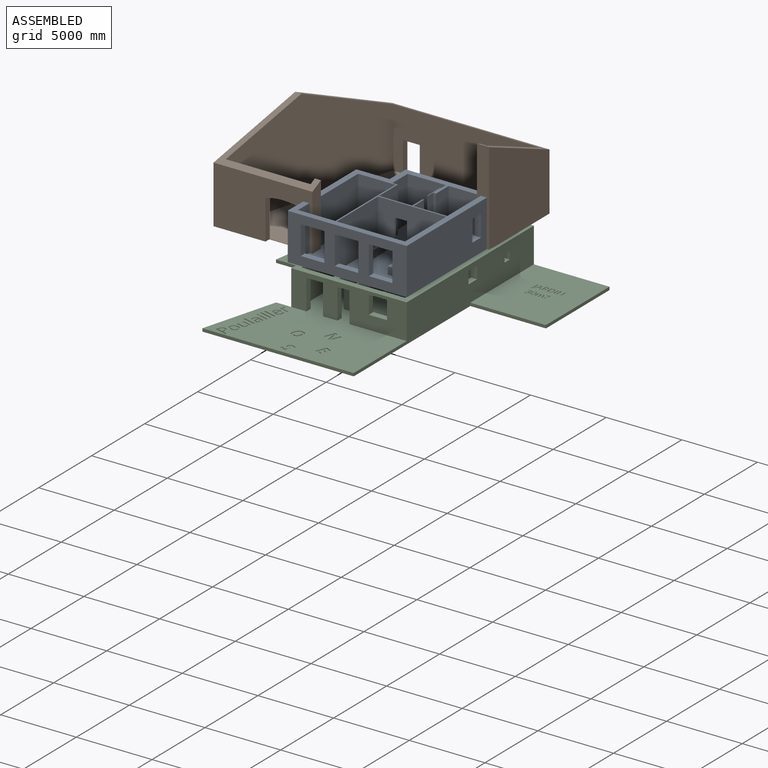
[diagram: assembled view]
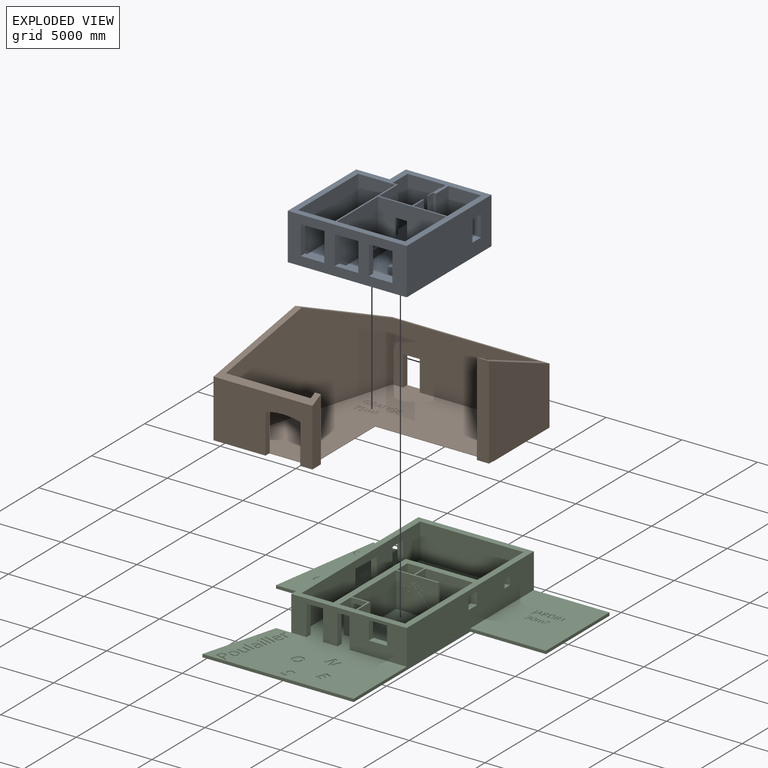
[diagram: exploded view]
GUIDED TOUR — MATED ASSEMBLY (Onshape document 5b07164b335bba8ee51f4380, AutoMate assembly 5b07164b335bba8ee51f4380_55357e48fb8a0a89cb734619_276b6a26d97ef7c32d27a7d5_default)

This assembly has 3 components, labeled P0..P2 below (a component is one placed occurrence of a part; the same part can appear more than once), held together by 2 mates. A mate is a constraint between two components; its type names the relative motion it leaves free:
  FASTENED — locks the two components together rigidly (no relative motion).
Axis/direction vectors are unit vectors and 'through' points are millimeter coordinates, both in the assembly's world frame.

MATES
  1. FASTENED "Fastened 3": P0 <-> P1, direction (0.000, 0.000, -1.000) through (-421.94, 3028.25, 818.60) mm
  2. FASTENED "Fastened 2": P2 <-> P0, direction (0.000, 0.000, 1.000) through (5238.06, -3441.75, 518.60) mm

ASSEMBLY ORDER
  1. P0 — the base component [order verified]
  2. P1 [order verified]
  3. P2 [order verified]
Order-tag legend:
  [order verified] — this step's position reverses a verified removal order: the component was checked to insert without passing through the ones already placed.

Of the 3 components, 1 carries the full construction recipe — the FeatureScript program that regenerates the part's solid from scratch; the rest are supplied as boundary geometry only.
Each toured component is shown spotlighted twice — in the assembled view, then in the exploded view, where a leader line traces a displaced component back to its assembled socket (saturated green if recipe-attached, orange if geometry-only; every other component desaturated gray) — followed by its recipe or geometry summary and the mates that hold it.
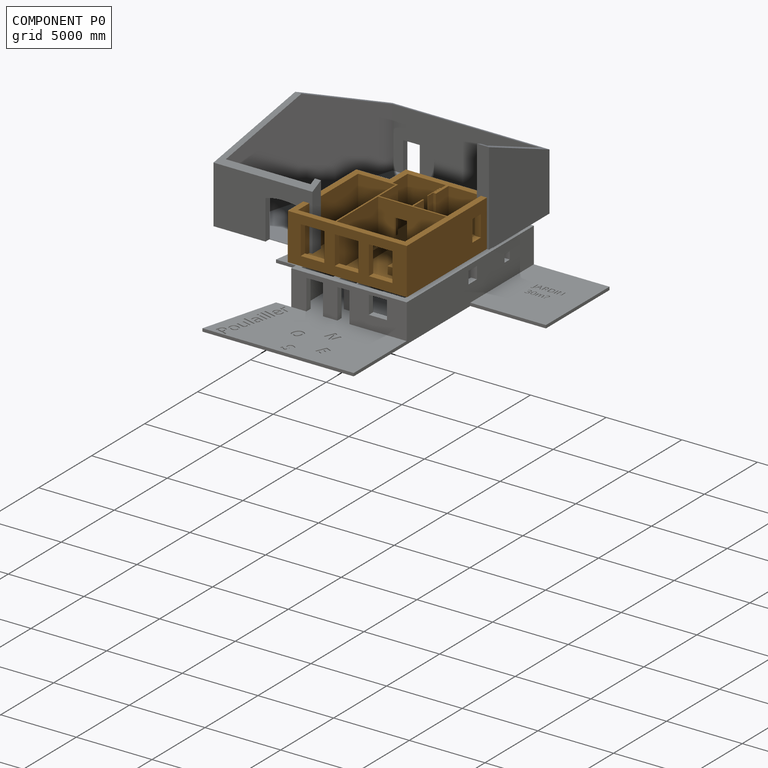
[diagram: component P0 — assembled]
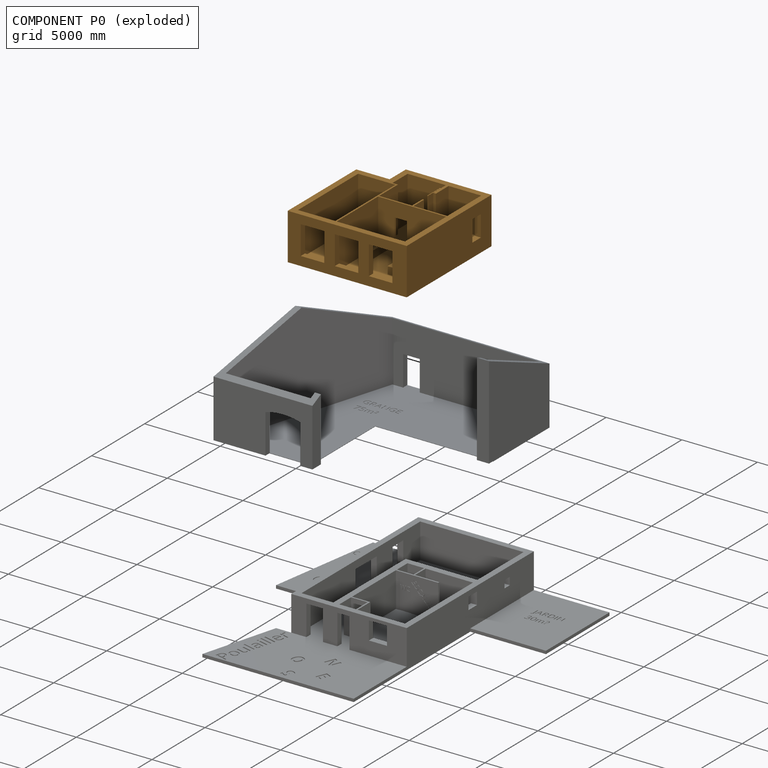
[diagram: component P0 — exploded]
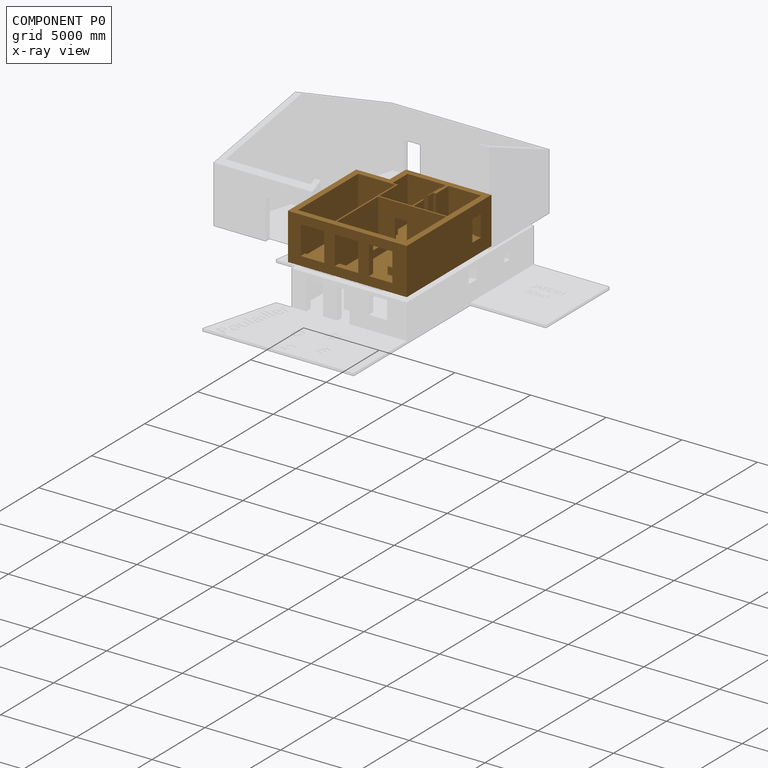
[diagram: component P0 — x-ray view]
COMPONENT P0 — geometry summary (no construction recipe available for this part):
  bounding box: 8000.0 x 7860.0 x 3070.0 mm
  B-rep topology: 1 solid, 104 faces, 558 edges
  volume: 44817512865 mm^3 (23% of its bounding box)
Held by: FASTENED mate "Fastened 3" to P1; FASTENED mate "Fastened 2" to P2.
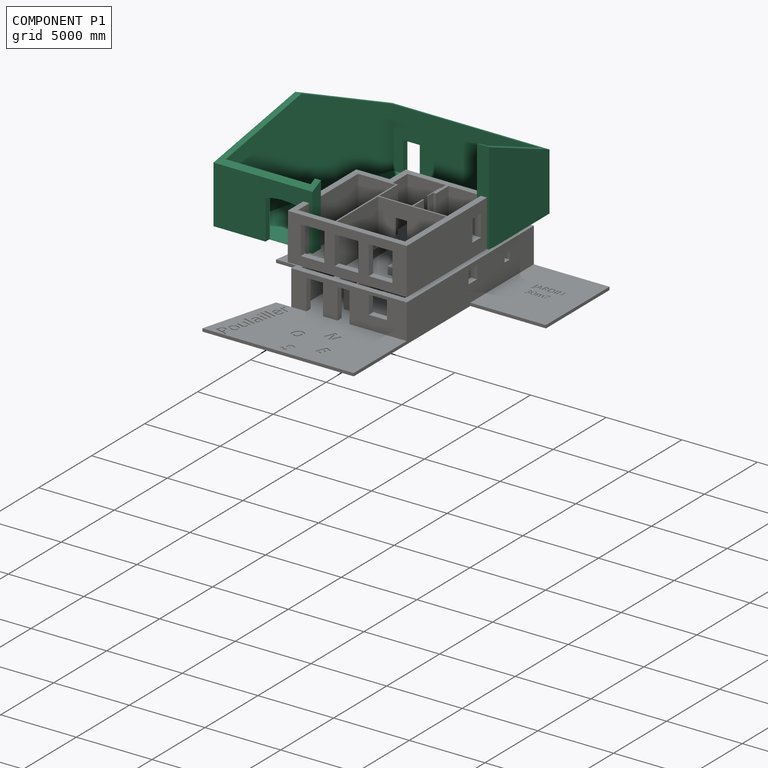
[diagram: component P1 — assembled]
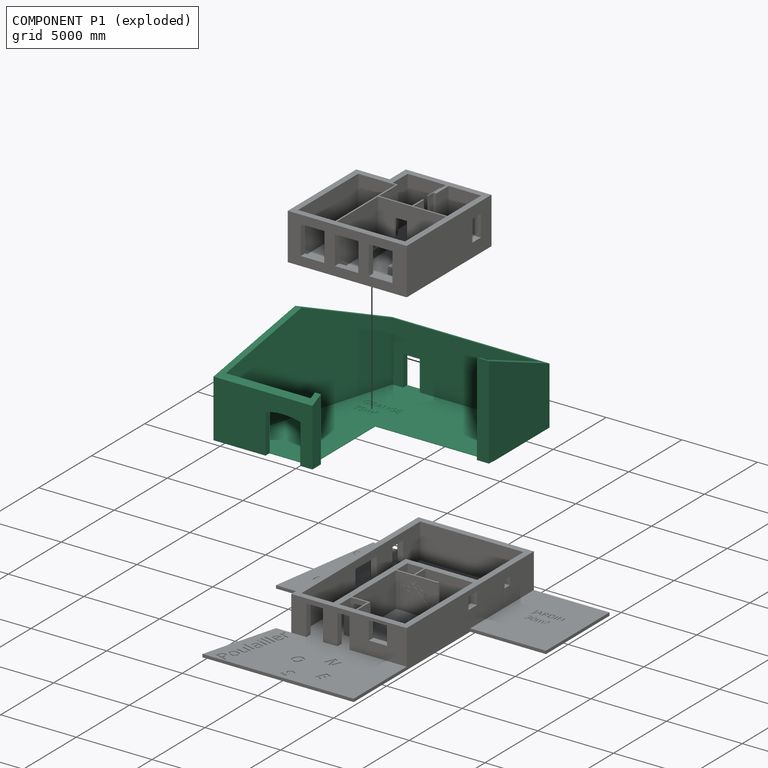
[diagram: component P1 — exploded]
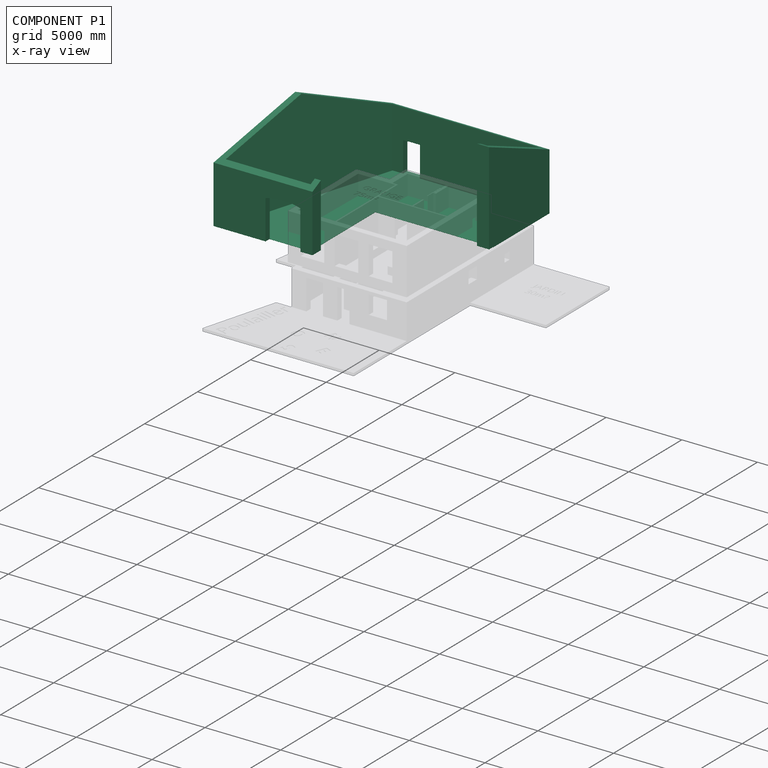
[diagram: component P1 — x-ray view]
COMPONENT P1 — recipe-attached (CADFS 00465519, mesh-verified: the recipe's output STEP matches this component's geometry to below the mesh-comparison resolution (tessellation chordal tolerance ~29 mm)).
Held by: FASTENED mate "Fastened 3" to P0.
Construction recipe (FeatureScript — the CAD program that rebuilds this solid; sketch coordinates are in the units given by the * unit suffixes, e.g. mm):

FeatureScript 1540;
import(path : "onshape/std/geometry.fs", version : "1540.0");
import(path : "onshape/std/common.fs", version : "1540.0");
const mm = millimeter;
const VERTEX = EntityType.VERTEX;
const EDGE = EntityType.EDGE;
const FACE = EntityType.FACE;
const BODY = EntityType.BODY;
function v(x, y){return vector(x, y);}
function OD(order){return orderDisambiguation(order);}
function OSD(set){return originalSetDisambiguation(set);}
function TD(topology){return topologyDisambiguation(topology);}
function TDD(query){return trueDependencyDisambiguation(query);}
function sQuery(a, b, c) {return sketchEntityQuery(a, b, c);}

annotation { "Feature Type Name" : "Feature", "Feature Type Description" : "" }
export const myFeature = defineFeature(function(context is Context, id is Id, definition is map)
    precondition{}
    {
        {
            var Q0;
            Q0=qCreatedBy(makeId("Top.planeOp"),FACE);
            var sketch = newSketch(context, id + "F0", { "sketchPlane" : qUnion([Q0])});
            skLineSegment(sketch, "E0", {"start": v(-9700, 4910) * mm, "end": v(0, 4910) * mm});
            skLineSegment(sketch, "E1", {"start": v(-9700, 4910) * mm, "end": v(-13000, -6100) * mm});
            skLineSegment(sketch, "E2", {"start": v(0, 4910) * mm, "end": v(0, 0) * mm});
            skLineSegment(sketch, "E3", {"start": v(-7400, -6100) * mm, "end": v(-13000, -6100) * mm});
            skLineSegment(sketch, "E4.0", {"start": v(-9997.69, 5310) * mm, "end": v(400, 5310) * mm});
            skLineSegment(sketch, "E4.1", {"start": v(-7000, -6500) * mm, "end": v(-13537.47, -6500) * mm});
            skLineSegment(sketch, "E4.3", {"start": v(-9997.69, 5310) * mm, "end": v(-13537.47, -6500) * mm});
            skLineSegment(sketch, "E4.5", {"start": v(400, 5310) * mm, "end": v(400, -400) * mm});
            skLineSegment(sketch, "E5", {"start": v(-7400, -6100) * mm, "end": v(-7400, -5700) * mm});
            skLineSegment(sketch, "E6", {"start": v(-7400, -5700) * mm, "end": v(-7000, -5700) * mm});
            skLineSegment(sketch, "E7", {"start": v(-7000, -5700) * mm, "end": v(-7000, -6500) * mm});
            skLineSegment(sketch, "E8", {"start": v(0, 0) * mm, "end": v(-400, 0) * mm});
            skLineSegment(sketch, "E9", {"start": v(-400, 0) * mm, "end": v(-400, -400) * mm});
            skLineSegment(sketch, "E10", {"start": v(-400, -400) * mm, "end": v(400, -400) * mm});
            skSolve(sketch);
        }
        {
            var Q0;
            Q0 = qSketchRegion(id + "F0", true);
            extrude(context, id + "F1", {"entities" : qUnion([Q0]), "depth" : 6400 * mm});
        }
        {
            var Q0;
            Q0=qCreatedBy(makeId("Right.planeOp"),FACE);
            var sketch = newSketch(context, id + "F2", { "sketchPlane" : qUnion([Q0])});
            skLineSegment(sketch, "E11", {"start": v(-6500, 3800) * mm, "end": v(-1100, 6400) * mm});
            skLineSegment(sketch, "E12", {"start": v(-1100, 6400) * mm, "end": v(5310, 3800) * mm});
            skLineSegment(sketch, "E13", {"start": v(5310, 3800) * mm, "end": v(5310, 0) * mm});
            skLineSegment(sketch, "E14", {"start": v(5310, 3800) * mm, "end": v(5310, 6400) * mm});
            skLineSegment(sketch, "E15", {"start": v(-6500, 6400) * mm, "end": v(5310, 6400) * mm});
            skLineSegment(sketch, "E16", {"start": v(-6500, 6400) * mm, "end": v(-6500, 3800) * mm});
            skSolve(sketch);
        }
        {
            var Q0;
            Q0 = qSketchRegion(id + "F2", true);
            extrude(context, id + "F3", {"entities" : qUnion([Q0]), "operationType" : NewBodyOperationType.REMOVE, "endBound" : BoundingType.THROUGH_ALL, "depth" : 25.4 * mm, "hasSecondDirection" : true, "secondDirectionBound" : BoundingType.THROUGH_ALL, "secondDirectionOppositeDirection" : true, "secondDirectionDepth" : 25.4 * mm});
        }
        {
            var Q0;
            Q0=makeQuery(id+"F1.opExtrude","SWEPT_FACE",FACE,{"disambiguationData":[OSD([sQuery(id+"F0.wireOp",EDGE,"E4.0")])]});
            var sketch = newSketch(context, id + "F4", { "sketchPlane" : qUnion([Q0])});
            skLineSegment(sketch, "E17.bottom", {"start": v(7897.69, 0) * mm, "end": v(8997.69, 0) * mm});
            skLineSegment(sketch, "E17.top", {"start": v(7897.69, 2000) * mm, "end": v(8997.69, 2000) * mm});
            skLineSegment(sketch, "E17.left", {"start": v(7897.69, 0) * mm, "end": v(7897.69, 2000) * mm});
            skLineSegment(sketch, "E17.right", {"start": v(8997.69, 0) * mm, "end": v(8997.69, 2000) * mm});
            skSolve(sketch);
        }
        {
            var Q0;
            Q0 = qSketchRegion(id + "F4", true);
            extrude(context, id + "F5", {"entities" : qUnion([Q0]), "operationType" : NewBodyOperationType.REMOVE, "endBound" : BoundingType.UP_TO_NEXT, "oppositeDirection" : true, "depth" : 25.4 * mm});
        }
        {
            var Q0;
            Q0=makeQuery(id+"F1.opExtrude","SWEPT_FACE",FACE,{"disambiguationData":[OSD([sQuery(id+"F0.wireOp",EDGE,"E4.1")])]});
            var sketch = newSketch(context, id + "F6", { "sketchPlane" : qUnion([Q0])});
            skLineSegment(sketch, "E18", {"start": v(-10100, 0) * mm, "end": v(-10100, 2600) * mm});
            skArc(sketch, "E19", {"start": v(-7800, 2600) * mm, "mid": v(-8950, 2768.88) * mm, "end": v(-10100, 2600) * mm});
            skLineSegment(sketch, "E20", {"start": v(-7800, 2600) * mm, "end": v(-7800, 0) * mm});
            skLineSegment(sketch, "E21", {"start": v(-7800, 0) * mm, "end": v(-10100, 0) * mm});
            skSolve(sketch);
        }
        {
            var Q0;
            Q0 = qSketchRegion(id + "F6", true);
            extrude(context, id + "F7", {"entities" : qUnion([Q0]), "operationType" : NewBodyOperationType.REMOVE, "endBound" : BoundingType.UP_TO_NEXT, "oppositeDirection" : true, "depth" : 25.4 * mm});
        }
        {
            var Q0;
            {var subQ0=sQuery(id+"F0.wireOp",EDGE,"E3");var subQ1=sQuery(id+"F0.wireOp",EDGE,"E4.0");var subQ2=sQuery(id+"F0.wireOp",EDGE,"E1");var subQ3=sQuery(id+"F0.wireOp",EDGE,"E0");var subQ4=sQuery(id+"F0.wireOp",EDGE,"E4.3");var subQ5=sQuery(id+"F0.wireOp",EDGE,"E4.1");Q0=makeQuery(id+"F7.boolean.opBoolean","SPLIT",FACE,{"disambiguationData":[TD([makeQuery(id+"F1.opExtrude","SWEPT_FACE",FACE,{"disambiguationData":[OSD([subQ2])]})])],"derivedFrom":makeQuery(id+"F1.opExtrude","CAP_FACE",FACE,{"disambiguationData":[OSD([subQ3,subQ2,sQuery(id+"F0.wireOp",EDGE,"E2"),sQuery(id+"F0.wireOp",EDGE,"q86xWEi4-8NHh-2lQc-s4JO-oboVVbpXyoTF"),sQuery(id+"F0.wireOp",EDGE,"fW7YdV6a-fR6s-xuWl-E4J9-OQ2L1WpyIvuU"),subQ0,subQ1,subQ5,sQuery(id+"F0.wireOp",EDGE,"E4.2"),subQ4,sQuery(id+"F0.wireOp",EDGE,"E4.4"),sQuery(id+"F0.wireOp",EDGE,"E4.5")])],"isStart":true})});}
            var sketch = newSketch(context, id + "F8", { "sketchPlane" : qUnion([Q0])});
            skLineSegment(sketch, "E22", {"start": v(-9997.69, -5310) * mm, "end": v(400, -5310) * mm});
            skLineSegment(sketch, "E23", {"start": v(400, -5310) * mm, "end": v(400, -5310) * mm});
            skLineSegment(sketch, "E24", {"start": v(-13417.58, 6100) * mm, "end": v(-9997.69, -5310) * mm});
            skLineSegment(sketch, "E25", {"start": v(400, -5310) * mm, "end": v(400, 0) * mm});
            skLineSegment(sketch, "E26", {"start": v(400, 0) * mm, "end": v(-7400, 0) * mm});
            skLineSegment(sketch, "E27", {"start": v(-7400, 0) * mm, "end": v(-7400, 6100) * mm});
            skLineSegment(sketch, "E28", {"start": v(-7400, 6100) * mm, "end": v(-13417.58, 6100) * mm});
            skSolve(sketch);
        }
        {
            var Q0;
            Q0 = qSketchRegion(id + "F8", true);
            extrude(context, id + "F9", {"entities" : qUnion([Q0]), "operationType" : NewBodyOperationType.ADD, "oppositeDirection" : true, "depth" : 1 * mm, "hasSecondDirection" : true, "secondDirectionOppositeDirection" : false, "secondDirectionDepth" : 25 * mm});
        }
        {
            var Q0;
            Q0=makeQuery(id+"F9.opExtrude","CAP_FACE",FACE,{"disambiguationData":[OSD([sQuery(id+"F8.wireOp",EDGE,"E22"),sQuery(id+"F8.wireOp",EDGE,"E24"),sQuery(id+"F8.wireOp",EDGE,"E25"),sQuery(id+"F8.wireOp",EDGE,"E26"),sQuery(id+"F8.wireOp",EDGE,"E27"),sQuery(id+"F8.wireOp",EDGE,"E28")])],"isStart":false});
            var sketch = newSketch(context, id + "F10", { "sketchPlane" : qUnion([Q0])});
            skText(sketch, "E29", { "text": "GRANGE\n75m²", "fontName": "OpenSans-Regular.ttf"});
            const initialGuessF10  = {"E29": [-9.75796, 2.02622, 1, 0, 0.45193]};
            skSetInitialGuess(sketch, initialGuessF10);
            skSolve(sketch);
        }
        {
            var Q0;
            Q0 = qSketchRegion(id + "F10", true);
            extrude(context, id + "F11", {"entities" : qUnion([Q0]), "operationType" : NewBodyOperationType.REMOVE, "oppositeDirection" : true, "depth" : 25 * mm});
        }
    });
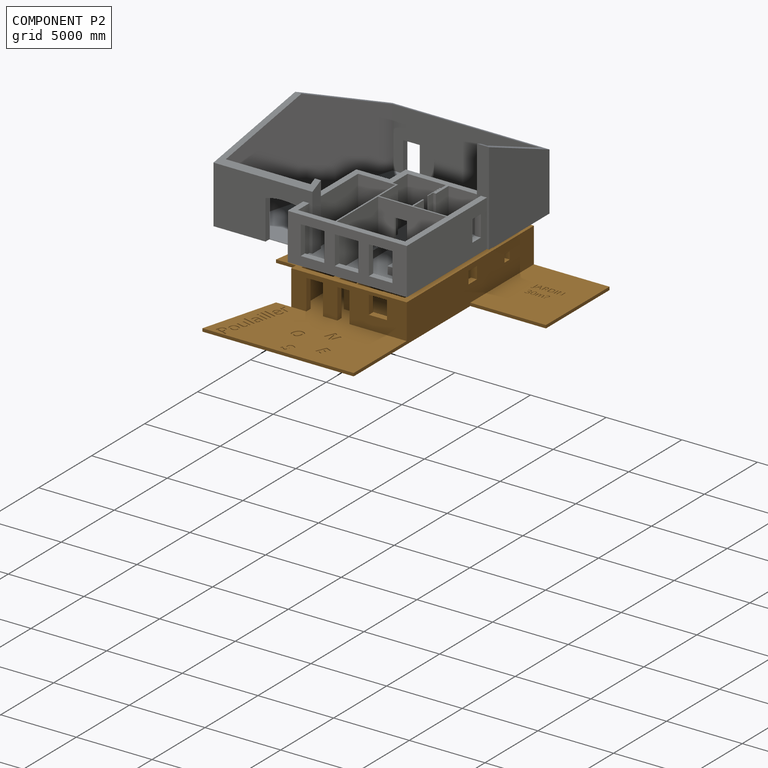
[diagram: component P2 — assembled]
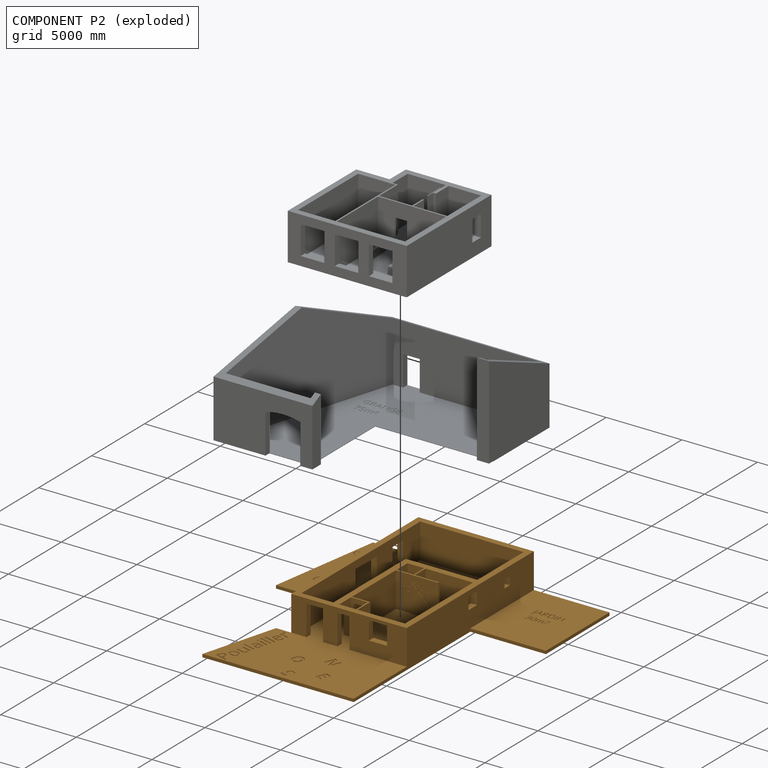
[diagram: component P2 — exploded]
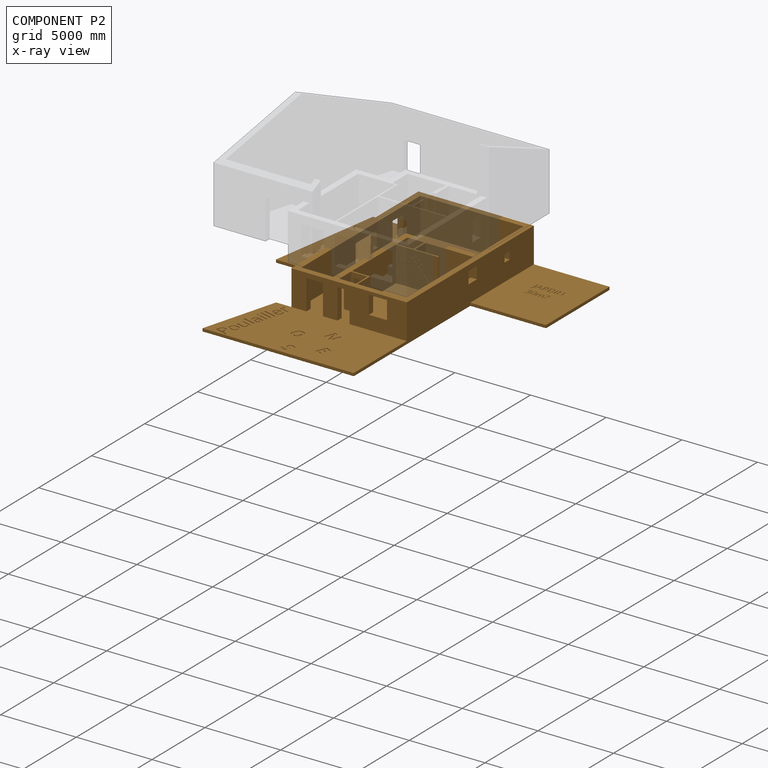
[diagram: component P2 — x-ray view]
COMPONENT P2 — geometry summary (no construction recipe available for this part):
  bounding box: 17000.0 x 16790.0 x 2510.0 mm
  B-rep topology: 1 solid, 1331 faces, 7408 edges
  volume: 79904733217 mm^3 (11% of its bounding box)
Held by: FASTENED mate "Fastened 2" to P0.
PROVENANCE & LICENSES
Assembly (occurrences, transforms, mates, per-part STEP geometry): AutoMate dataset, Zenodo record 7776208, CC0.
Construction recipes: CADFS (HuggingFace VladPyatov/CADFS, CC-BY-4.0, layered over the ABC dataset), FeatureScript reconstruction programs keyed by ABC model id.
Join: ABC meta listings map ABC model id -> Onshape documentId; within a shared document, parts are matched by geometric signature (bounding-box dims + volume at 0.1% relative tolerance, exact B-rep face/solid counts).
Verification: 1 of this assembly's 3 components carries a recipe attachment, and every attachment is mesh-verified: the CADFS STEP and the AutoMate member STEP were compared as meshes in their shared local frame (symmetric sampled-point-to-mesh distance); worst across the 1 attachment: below the mesh-comparison resolution (tessellation chordal tolerance ~29 mm) on a 19365 mm part.
Renders: orthographic iso camera (az 35 / el 25); the floor grid conveys scale (grid pitch printed in each image; no ruler). In the exploded view each component is displaced by its stored offset vector: the offsets alone carry the explosion direction (mate normal/axis signs are not orientation cues and do not encode it), and separation distances are assigned per mate-chain, not proportionally to assembly-order depth.
